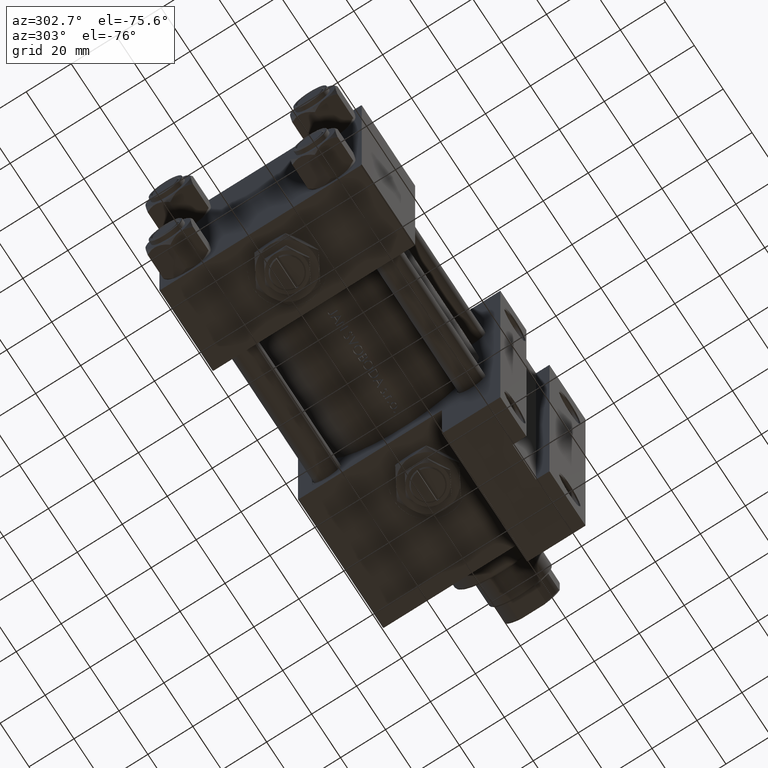
[diagram: clean part render]
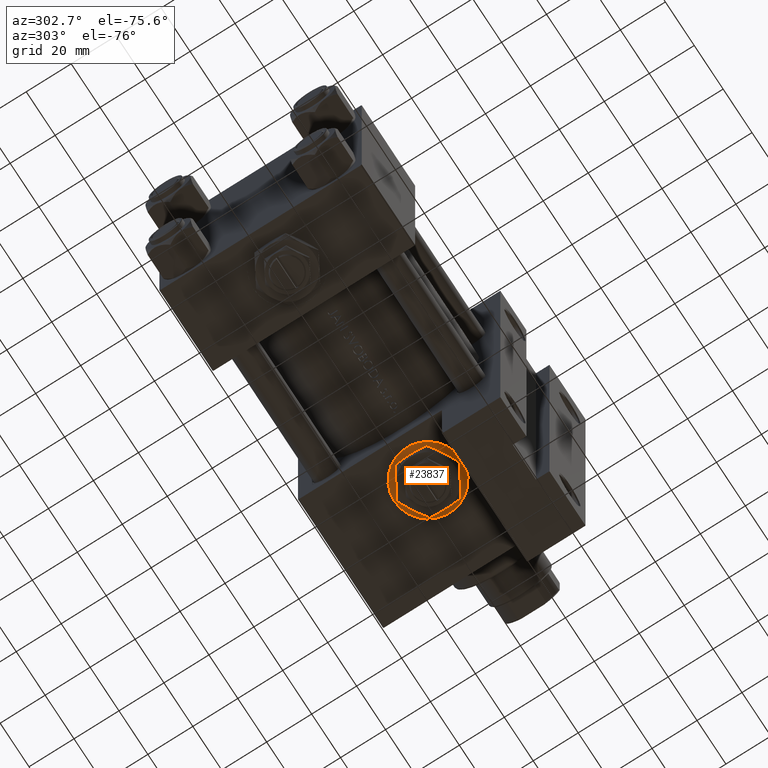
[diagram: same view with one face highlighted and labeled with its STEP entity id]
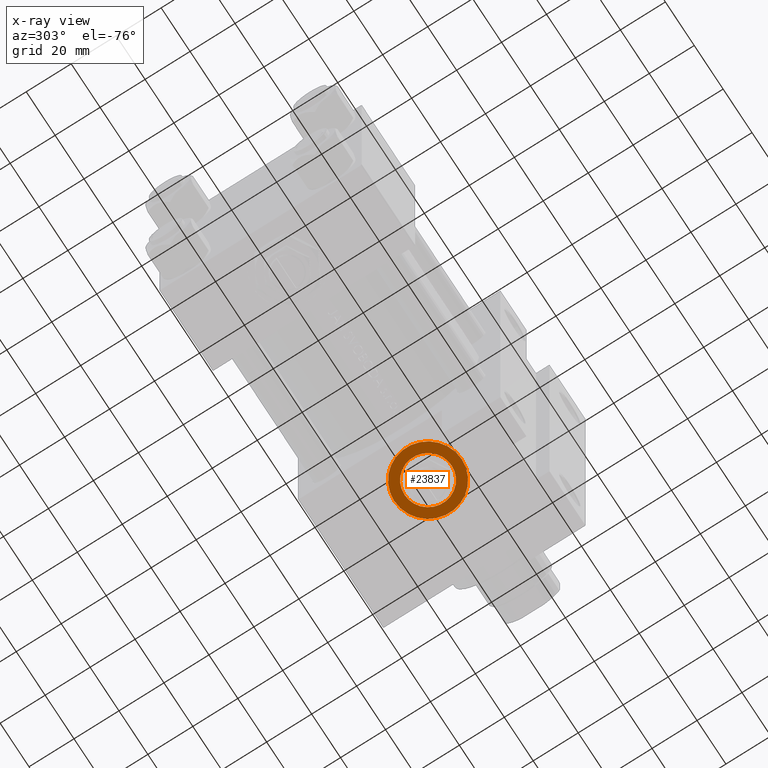
[diagram: x-ray of the same camera — body ghosted, the highlighted face saturated]
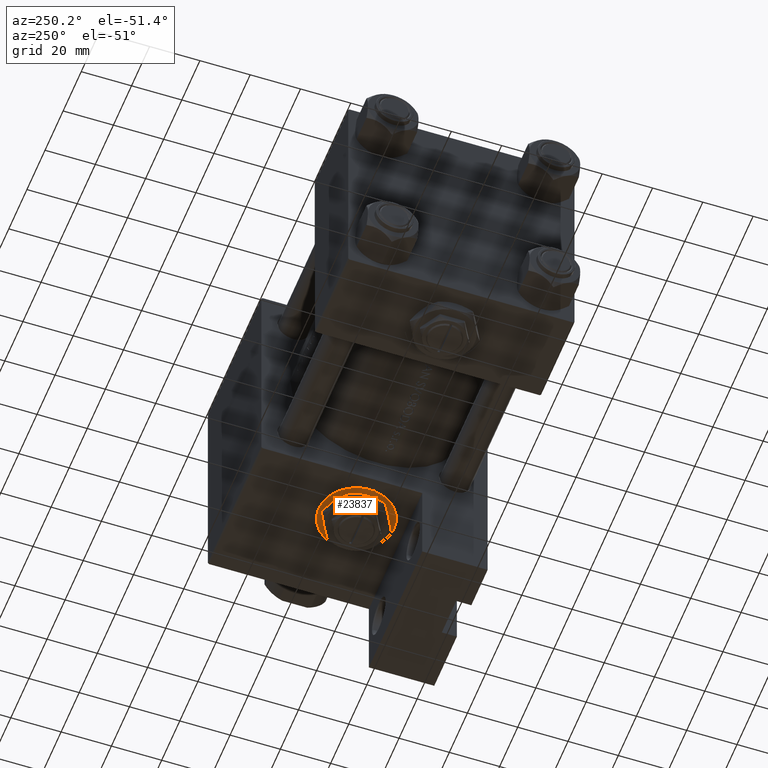
[diagram: same view with one face highlighted and labeled with its STEP entity id]
A machine part, auxiliary view. The second image highlights one B-rep face of the part: STEP entity #23837.
The next image is the same camera in x-ray: the body ghosted, the highlighted face saturated — about 1% of this face is hidden behind the body in this view.
A second angle (auxiliary view) of the same face is appended — the face is thin or edge-on in the first view.
In plain terms, the highlighted planar face has unit normal (0, 0, -1).
Its self-contained STEP definition (entity closure, byte-faithful):
#559 = CARTESIAN_POINT ( 'NONE',  ( 116.0000000000000000, 44.80000000000001137, 0.000000000000000000 ) ) ;
#1001 = CARTESIAN_POINT ( 'NONE',  ( 116.0000000000000000, 44.80000000000001137, 0.000000000000000000 ) ) ;
#1012 = PLANE ( 'NONE',  #28476 ) ;
#1188 = AXIS2_PLACEMENT_3D ( 'NONE', #559, #15417, #8103 ) ;
#1250 = DIRECTION ( 'NONE',  ( 0.000000000000000000, 0.000000000000000000, 1.000000000000000000 ) ) ;
#4637 = ORIENTED_EDGE ( 'NONE', *, *, #34163, .F. ) ;
#6791 = CIRCLE ( 'NONE', #1188, 15.00000000000001243 ) ;
#6830 = AXIS2_PLACEMENT_3D ( 'NONE', #29635, #48493, #44719 ) ;
#7990 = CARTESIAN_POINT ( 'NONE',  ( 116.0000000000000000, 44.80000000000001847, 0.000000000000000000 ) ) ;
#8103 = DIRECTION ( 'NONE',  ( 0.000000000000000000, 0.000000000000000000, 1.000000000000000000 ) ) ;
#8319 = DIRECTION ( 'NONE',  ( 0.000000000000000000, -0.000000000000000000, 1.000000000000000000 ) ) ;
#8867 = VERTEX_POINT ( 'NONE', #40047 ) ;
#11913 = EDGE_LOOP ( 'NONE', ( #48619, #21006 ) ) ;
#12216 = VERTEX_POINT ( 'NONE', #33847 ) ;
#12442 = VERTEX_POINT ( 'NONE', #33791 ) ;
#14373 = EDGE_CURVE ( 'NONE', #18617, #12216, #6791, .T. ) ;
#15417 = DIRECTION ( 'NONE',  ( 0.000000000000000000, 1.000000000000000000, 0.000000000000000000 ) ) ;
#17286 = CIRCLE ( 'NONE', #6830, 10.48000000000000043 ) ;
#18419 = EDGE_LOOP ( 'NONE', ( #4637, #26250 ) ) ;
#18617 = VERTEX_POINT ( 'NONE', #25446 ) ;
#20149 = FACE_OUTER_BOUND ( 'NONE', #11913, .T. ) ;
#21006 = ORIENTED_EDGE ( 'NONE', *, *, #26261, .T. ) ;
#23326 = DIRECTION ( 'NONE',  ( 0.000000000000000000, 1.000000000000000000, 0.000000000000000000 ) ) ;
#23837 = ADVANCED_FACE ( 'NONE', ( #23916, #20149 ), #1012, .T. ) ;
#23916 = FACE_BOUND ( 'NONE', #18419, .T. ) ;
#24078 = CIRCLE ( 'NONE', #44110, 15.00000000000001243 ) ;
#25446 = CARTESIAN_POINT ( 'NONE',  ( 116.0000000000000000, 44.80000000000001137, 15.00000000000001243 ) ) ;
#26250 = ORIENTED_EDGE ( 'NONE', *, *, #38485, .F. ) ;
#26261 = EDGE_CURVE ( 'NONE', #12216, #18617, #24078, .T. ) ;
#27433 = CARTESIAN_POINT ( 'NONE',  ( 116.0000000000000000, 44.80000000000001137, 0.000000000000000000 ) ) ;
#27820 = DIRECTION ( 'NONE',  ( 0.000000000000000000, 0.000000000000000000, 1.000000000000000000 ) ) ;
#28476 = AXIS2_PLACEMENT_3D ( 'NONE', #27433, #42751, #8319 ) ;
#29635 = CARTESIAN_POINT ( 'NONE',  ( 116.0000000000000000, 44.80000000000001847, 0.000000000000000000 ) ) ;
#31440 = DIRECTION ( 'NONE',  ( 0.000000000000000000, 1.000000000000000000, 0.000000000000000000 ) ) ;
#33791 = CARTESIAN_POINT ( 'NONE',  ( 116.0000000000000000, 44.80000000000001847, -10.48000000000000043 ) ) ;
#33847 = CARTESIAN_POINT ( 'NONE',  ( 116.0000000000000000, 44.80000000000001137, -15.00000000000001243 ) ) ;
#34163 = EDGE_CURVE ( 'NONE', #8867, #12442, #17286, .T. ) ;
#38485 = EDGE_CURVE ( 'NONE', #12442, #8867, #48496, .T. ) ;
#40047 = CARTESIAN_POINT ( 'NONE',  ( 116.0000000000000000, 44.80000000000001847, 10.48000000000000043 ) ) ;
#42751 = DIRECTION ( 'NONE',  ( 0.000000000000000000, 1.000000000000000000, 0.000000000000000000 ) ) ;
#44110 = AXIS2_PLACEMENT_3D ( 'NONE', #1001, #31440, #1250 ) ;
#44464 = AXIS2_PLACEMENT_3D ( 'NONE', #7990, #23326, #27820 ) ;
#44719 = DIRECTION ( 'NONE',  ( 0.000000000000000000, 0.000000000000000000, 1.000000000000000000 ) ) ;
#48493 = DIRECTION ( 'NONE',  ( 0.000000000000000000, 1.000000000000000000, 0.000000000000000000 ) ) ;
#48496 = CIRCLE ( 'NONE', #44464, 10.48000000000000043 ) ;
#48619 = ORIENTED_EDGE ( 'NONE', *, *, #14373, .T. ) ;